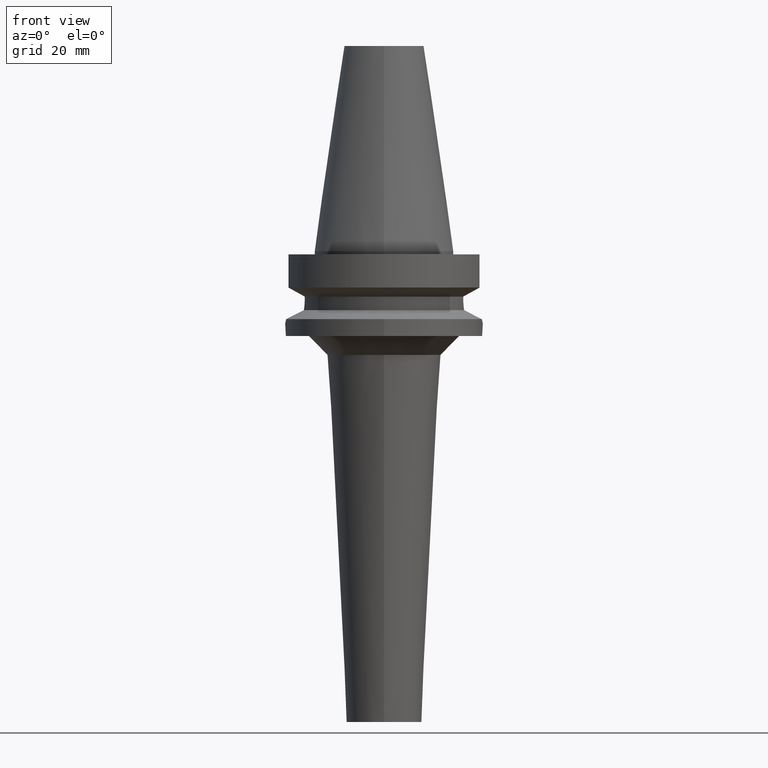
[diagram: clean part render]
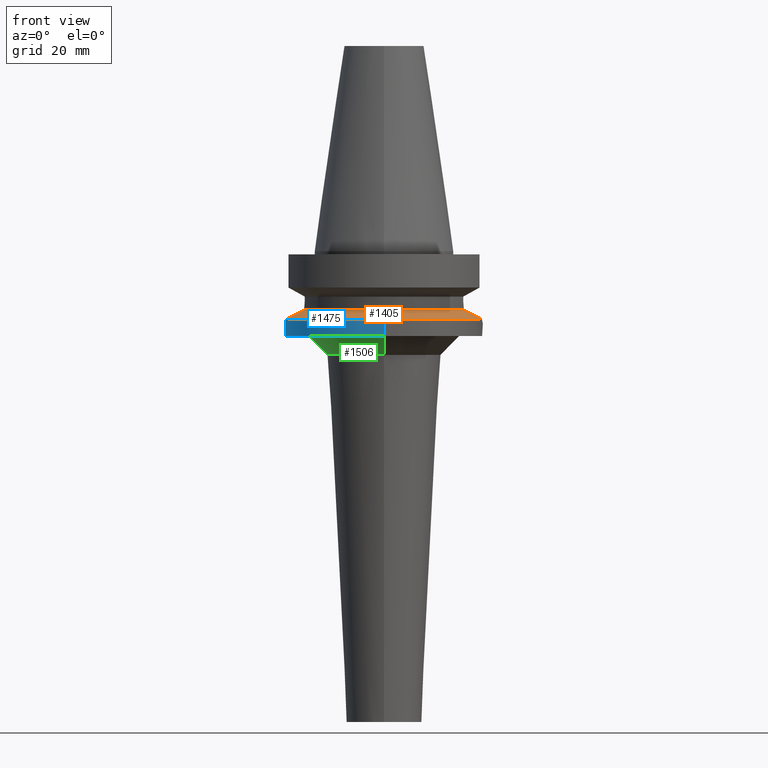
[diagram: same view with three faces highlighted in distinct colors, each labeled with its STEP entity id]
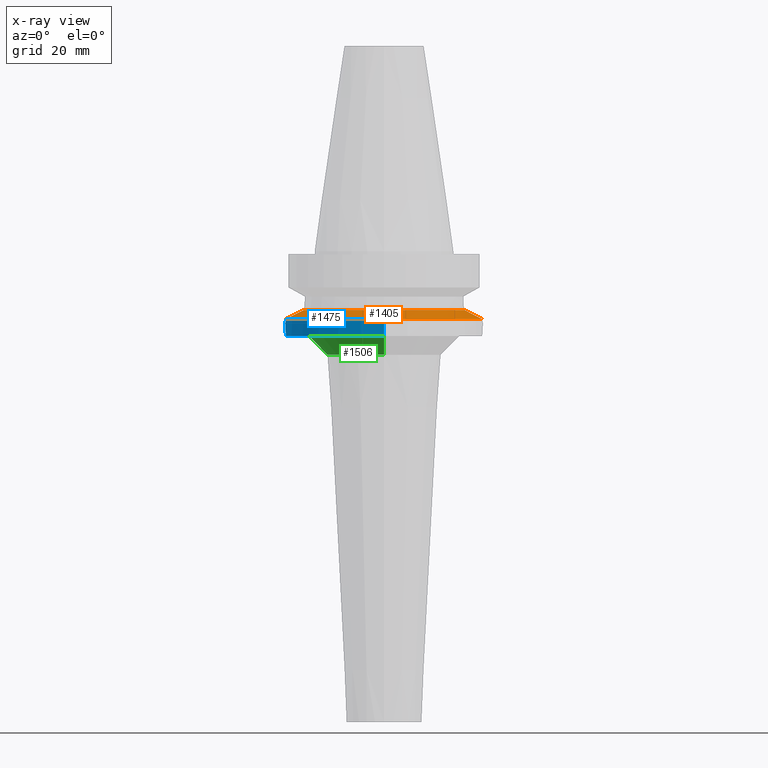
[diagram: x-ray of the same camera — body ghosted, the three highlighted faces saturated]
A machine part, front view with three faces highlighted in distinct colors.
The next image is the same camera in x-ray (body ghosted, the three faces saturated) — at least one of them is partly hidden behind the body in this view.
Their STEP definitions:

[orange] entity #1405 — the highlighted conical surface has half-angle 60 deg.
#458=CARTESIAN_POINT('',(-3.117899877609E1,-4.485536235554E0,
-2.163449434733E1));
#459=CARTESIAN_POINT('',(-3.064885916856E1,-4.887736533705E0,
-2.136460347488E1));
#460=CARTESIAN_POINT('',(-2.950578992837E1,-5.597523311112E0,
-2.078213674500E1));
#461=CARTESIAN_POINT('',(-2.770526559912E1,-6.417822246693E0,
-1.986248747885E1));
#462=CARTESIAN_POINT('',(-2.628256180244E1,-6.891477426449E0,
-1.913346968934E1));
#463=CARTESIAN_POINT('',(-2.553175183775E1,-7.097862220093E0,
-1.874774300139E1));
#468=CARTESIAN_POINT('',(0.E0,0.E0,-1.874774300139E1));
#469=DIRECTION('',(0.E0,0.E0,1.E0));
#470=DIRECTION('',(-9.634623335001E-1,-2.678438573620E-1,0.E0));
#471=AXIS2_PLACEMENT_3D('',#468,#469,#470);
#476=CARTESIAN_POINT('',(0.E0,0.E0,-1.874774300139E1));
#477=DIRECTION('',(0.E0,0.E0,1.E0));
#478=DIRECTION('',(0.E0,-1.E0,0.E0));
#479=AXIS2_PLACEMENT_3D('',#476,#477,#478);
#484=CARTESIAN_POINT('',(2.553175183775E1,-7.097862220093E0,-1.874774300139E1));
#485=CARTESIAN_POINT('',(2.631980732396E1,-6.881239270811E0,-1.915260448021E1));
#486=CARTESIAN_POINT('',(2.779067636775E1,-6.386584007005E0,-1.990619770135E1));
#487=CARTESIAN_POINT('',(2.960214055152E1,-5.544969082454E0,-2.083127196154E1));
#488=CARTESIAN_POINT('',(3.068675739268E1,-4.858984339335E0,-2.138389723189E1));
#489=CARTESIAN_POINT('',(3.117899877609E1,-4.485536235554E0,-2.163449434733E1));
#494=CARTESIAN_POINT('',(0.E0,0.E0,-2.163449434733E1));
#495=DIRECTION('',(0.E0,0.E0,-1.E0));
#496=DIRECTION('',(9.898094849553E-1,-1.423979757319E-1,0.E0));
#497=AXIS2_PLACEMENT_3D('',#494,#495,#496);
#502=CARTESIAN_POINT('',(0.E0,0.E0,-2.163449434733E1));
#503=DIRECTION('',(0.E0,0.E0,-1.E0));
#504=DIRECTION('',(0.E0,-1.E0,0.E0));
#505=AXIS2_PLACEMENT_3D('',#502,#503,#504);
#524=CARTESIAN_POINT('',(3.117899877609E1,-4.485536235554E0,-2.163449434733E1));
#970=VERTEX_POINT('',#524);
#973=CARTESIAN_POINT('',(0.E0,-3.15E1,-2.163449434733E1));
#974=VERTEX_POINT('',#973);
#975=VERTEX_POINT('',#484);
#986=VERTEX_POINT('',#458);
#987=VERTEX_POINT('',#463);
#988=CARTESIAN_POINT('',(0.E0,-2.65E1,-1.874774300139E1));
#989=VERTEX_POINT('',#988);
#1389=CARTESIAN_POINT('',(0.E0,0.E0,-2.019111867436E1));
#1390=DIRECTION('',(0.E0,0.E0,-1.E0));
#1391=DIRECTION('',(0.E0,-1.E0,0.E0));
#1392=AXIS2_PLACEMENT_3D('',#1389,#1390,#1391);
#1393=CONICAL_SURFACE('',#1392,2.9E1,6.E1);
#1394=ORIENTED_EDGE('',*,*,#1374,.T.);
#1395=ORIENTED_EDGE('',*,*,#1210,.T.);
#1396=ORIENTED_EDGE('',*,*,#1208,.T.);
#1398=ORIENTED_EDGE('',*,*,#1397,.T.);
#1400=ORIENTED_EDGE('',*,*,#1399,.T.);
#1402=ORIENTED_EDGE('',*,*,#1401,.T.);
#1403=EDGE_LOOP('',(#1394,#1395,#1396,#1398,#1400,#1402));
#1404=FACE_OUTER_BOUND('',#1403,.F.);
#464=B_SPLINE_CURVE_WITH_KNOTS('',3,(#458,#459,#460,#461,#462,#463),
.UNSPECIFIED.,.F.,.F.,(4,1,1,4),(0.E0,3.333333333333E-1,6.666666666667E-1,1.E0),
.UNSPECIFIED.);
#472=CIRCLE('',#471,2.65E1);
#480=CIRCLE('',#479,2.65E1);
#490=B_SPLINE_CURVE_WITH_KNOTS('',3,(#484,#485,#486,#487,#488,#489),
.UNSPECIFIED.,.F.,.F.,(4,1,1,4),(0.E0,3.333333333333E-1,6.666666666667E-1,1.E0),
.UNSPECIFIED.);
#498=CIRCLE('',#497,3.15E1);
#506=CIRCLE('',#505,3.15E1);
#1208=EDGE_CURVE('',#989,#975,#480,.T.);
#1210=EDGE_CURVE('',#987,#989,#472,.T.);
#1374=EDGE_CURVE('',#986,#987,#464,.T.);
#1397=EDGE_CURVE('',#975,#970,#490,.T.);
#1399=EDGE_CURVE('',#970,#974,#498,.T.);
#1401=EDGE_CURVE('',#974,#986,#506,.T.);
#1405=ADVANCED_FACE('',(#1404),#1393,.T.);

[blue] entity #1475 — the highlighted cylindrical surface (partial cylindrical patch) has radius 31.5 mm, axis along (0, 0, -1).
#458=CARTESIAN_POINT('',(-3.117899877609E1,-4.485536235554E0,
-2.163449434733E1));
#502=CARTESIAN_POINT('',(0.E0,0.E0,-2.163449434733E1));
#503=DIRECTION('',(0.E0,0.E0,-1.E0));
#504=DIRECTION('',(0.E0,-1.E0,0.E0));
#505=AXIS2_PLACEMENT_3D('',#502,#503,#504);
#544=DIRECTION('',(0.E0,1.099151708819E-13,-1.E0));
#545=VECTOR('',#544,5.365505652669E0);
#546=CARTESIAN_POINT('',(0.E0,3.15E1,-2.163449434733E1));
#547=LINE('',#546,#545);
#556=CARTESIAN_POINT('',(-3.117899877609E1,4.485536235554E0,-2.163449434733E1));
#561=CARTESIAN_POINT('',(0.E0,0.E0,-2.163449434733E1));
#562=DIRECTION('',(0.E0,0.E0,-1.E0));
#563=DIRECTION('',(-9.898094849553E-1,1.423979757319E-1,0.E0));
#564=AXIS2_PLACEMENT_3D('',#561,#562,#563);
#603=CARTESIAN_POINT('',(-3.117899877609E1,4.485536235554E0,-2.163449434733E1));
#604=CARTESIAN_POINT('',(-3.125758182168E1,3.939304847884E0,-2.200103526353E1));
#605=CARTESIAN_POINT('',(-3.139261464344E1,2.797767363242E0,-2.257698631653E1));
#606=CARTESIAN_POINT('',(-3.150507122327E1,9.441464117467E-1,
-2.302018732986E1));
#607=CARTESIAN_POINT('',(-3.150407816921E1,-9.729661698151E-1,
-2.301637624310E1));
#608=CARTESIAN_POINT('',(-3.139071599048E1,-2.815832281130E0,
-2.256920942486E1));
#609=CARTESIAN_POINT('',(-3.125666943487E1,-3.945646856029E0,
-2.199677954786E1));
#610=CARTESIAN_POINT('',(-3.117899877609E1,-4.485536235554E0,
-2.163449434733E1));
#615=DIRECTION('',(0.E0,-1.105773104655E-13,-1.E0));
#616=VECTOR('',#615,5.365505652669E0);
#617=CARTESIAN_POINT('',(0.E0,-3.15E1,-2.163449434733E1));
#618=LINE('',#617,#616);
#630=CARTESIAN_POINT('',(0.E0,2.157460266058E-14,-2.7E1));
#631=DIRECTION('',(0.E0,0.E0,1.E0));
#632=DIRECTION('',(0.E0,1.E0,0.E0));
#633=AXIS2_PLACEMENT_3D('',#630,#631,#632);
#964=CARTESIAN_POINT('',(0.E0,-3.15E1,-2.7E1));
#965=CARTESIAN_POINT('',(0.E0,3.15E1,-2.7E1));
#966=VERTEX_POINT('',#964);
#967=VERTEX_POINT('',#965);
#971=CARTESIAN_POINT('',(0.E0,3.15E1,-2.163449434733E1));
#972=VERTEX_POINT('',#971);
#973=CARTESIAN_POINT('',(0.E0,-3.15E1,-2.163449434733E1));
#974=VERTEX_POINT('',#973);
#986=VERTEX_POINT('',#458);
#991=VERTEX_POINT('',#556);
#1461=CARTESIAN_POINT('',(0.E0,2.157460266058E-14,7.617E1));
#1462=DIRECTION('',(0.E0,0.E0,-1.E0));
#1463=DIRECTION('',(0.E0,-1.E0,0.E0));
#1464=AXIS2_PLACEMENT_3D('',#1461,#1462,#1463);
#1465=CYLINDRICAL_SURFACE('',#1464,3.15E1);
#1466=ORIENTED_EDGE('',*,*,#1376,.T.);
#1467=ORIENTED_EDGE('',*,*,#1401,.F.);
#1468=ORIENTED_EDGE('',*,*,#1440,.T.);
#1470=ORIENTED_EDGE('',*,*,#1469,.F.);
#1471=ORIENTED_EDGE('',*,*,#1436,.F.);
#1472=ORIENTED_EDGE('',*,*,#1452,.F.);
#1473=EDGE_LOOP('',(#1466,#1467,#1468,#1470,#1471,#1472));
#1474=FACE_OUTER_BOUND('',#1473,.F.);
#506=CIRCLE('',#505,3.15E1);
#565=CIRCLE('',#564,3.15E1);
#611=B_SPLINE_CURVE_WITH_KNOTS('',3,(#603,#604,#605,#606,#607,#608,#609,#610),
.UNSPECIFIED.,.F.,.F.,(4,1,1,1,1,4),(0.E0,2.E-1,4.E-1,6.E-1,8.E-1,1.E0),
.UNSPECIFIED.);
#634=CIRCLE('',#633,3.15E1);
#1376=EDGE_CURVE('',#991,#986,#611,.T.);
#1401=EDGE_CURVE('',#974,#986,#506,.T.);
#1436=EDGE_CURVE('',#972,#967,#547,.T.);
#1440=EDGE_CURVE('',#974,#966,#618,.T.);
#1452=EDGE_CURVE('',#991,#972,#565,.T.);
#1469=EDGE_CURVE('',#967,#966,#634,.T.);
#1475=ADVANCED_FACE('',(#1474),#1465,.T.);

[green] entity #1506 — the highlighted conical surface has half-angle 45 deg.
#638=CARTESIAN_POINT('',(0.E0,0.E0,-2.7E1));
#639=DIRECTION('',(0.E0,0.E0,-1.E0));
#640=DIRECTION('',(0.E0,-1.E0,0.E0));
#641=AXIS2_PLACEMENT_3D('',#638,#639,#640);
#654=DIRECTION('',(0.E0,7.071067811866E-1,-7.071067811865E-1));
#655=VECTOR('',#654,8.485281374239E0);
#656=CARTESIAN_POINT('',(0.E0,-2.413171017612E1,-2.7E1));
#657=LINE('',#656,#655);
#661=CARTESIAN_POINT('',(0.E0,0.E0,-3.3E1));
#662=DIRECTION('',(0.E0,0.E0,-1.E0));
#663=DIRECTION('',(0.E0,-1.E0,0.E0));
#664=AXIS2_PLACEMENT_3D('',#661,#662,#663);
#669=DIRECTION('',(0.E0,-7.071067811866E-1,-7.071067811865E-1));
#670=VECTOR('',#669,8.485281374239E0);
#671=CARTESIAN_POINT('',(0.E0,2.413171017612E1,-2.7E1));
#672=LINE('',#671,#670);
#956=CARTESIAN_POINT('',(0.E0,1.813171017612E1,-3.3E1));
#957=VERTEX_POINT('',#956);
#958=CARTESIAN_POINT('',(0.E0,-1.813171017612E1,-3.3E1));
#959=VERTEX_POINT('',#958);
#960=CARTESIAN_POINT('',(0.E0,2.413171017612E1,-2.7E1));
#961=VERTEX_POINT('',#960);
#962=CARTESIAN_POINT('',(0.E0,-2.413171017612E1,-2.7E1));
#963=VERTEX_POINT('',#962);
#1492=CARTESIAN_POINT('',(0.E0,0.E0,-3.E1));
#1493=DIRECTION('',(0.E0,0.E0,1.E0));
#1494=DIRECTION('',(0.E0,1.E0,0.E0));
#1495=AXIS2_PLACEMENT_3D('',#1492,#1493,#1494);
#1496=CONICAL_SURFACE('',#1495,2.113171017612E1,4.5E1);
#1498=ORIENTED_EDGE('',*,*,#1497,.F.);
#1499=ORIENTED_EDGE('',*,*,#1485,.F.);
#1501=ORIENTED_EDGE('',*,*,#1500,.T.);
#1503=ORIENTED_EDGE('',*,*,#1502,.T.);
#1504=EDGE_LOOP('',(#1498,#1499,#1501,#1503));
#1505=FACE_OUTER_BOUND('',#1504,.F.);
#642=CIRCLE('',#641,2.413171017612E1);
#665=CIRCLE('',#664,1.813171017612E1);
#1485=EDGE_CURVE('',#963,#961,#642,.T.);
#1497=EDGE_CURVE('',#961,#957,#672,.T.);
#1500=EDGE_CURVE('',#963,#959,#657,.T.);
#1502=EDGE_CURVE('',#959,#957,#665,.T.);
#1506=ADVANCED_FACE('',(#1505),#1496,.T.);